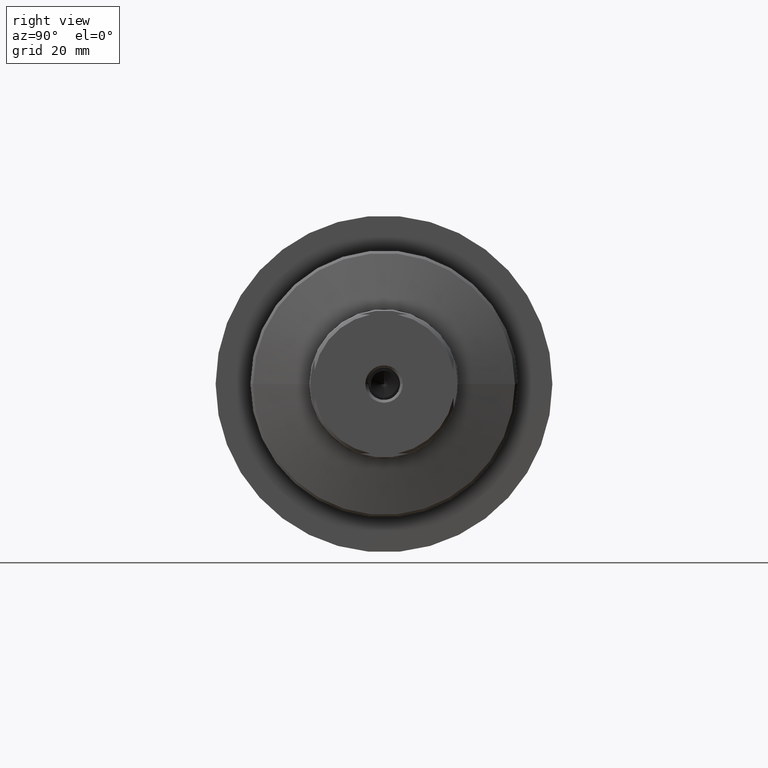
[diagram: clean part render]
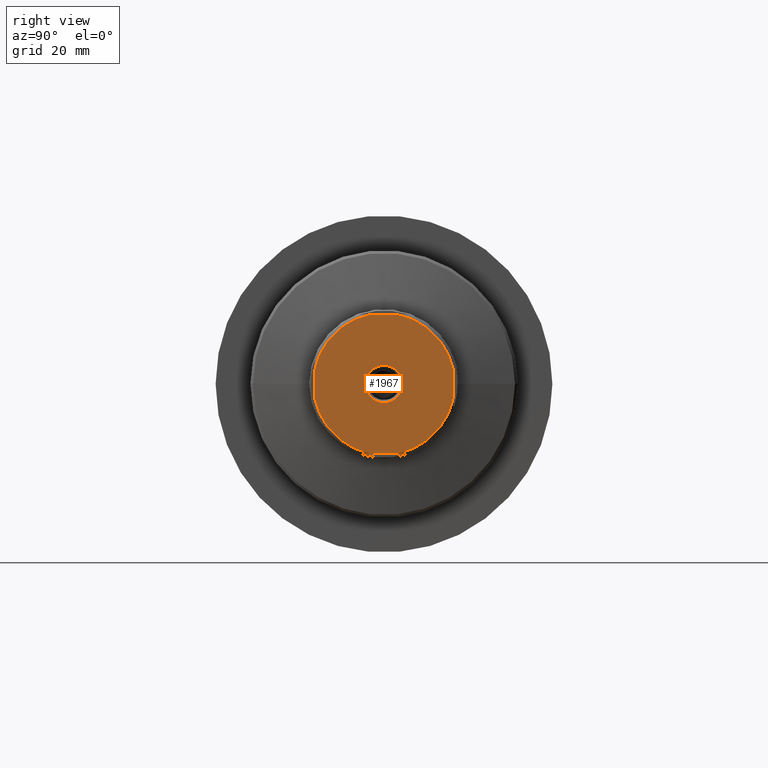
[diagram: same view with one face highlighted and labeled with its STEP entity id]
A machine part, right view. The second image highlights one B-rep face of the part: STEP entity #1967.
In plain terms, the highlighted planar face has unit normal (-1, -0, 0).
Its self-contained STEP definition (entity closure, byte-faithful):
#20 = VERTEX_POINT ( 'NONE', #460 ) ;
#70 = ORIENTED_EDGE ( 'NONE', *, *, #595, .T. ) ;
#74 = VECTOR ( 'NONE', #1925, 1000.000000000000000 ) ;
#75 = EDGE_CURVE ( 'NONE', #1160, #2187, #344, .T. ) ;
#87 = EDGE_CURVE ( 'NONE', #1160, #2223, #1934, .T. ) ;
#90 = DIRECTION ( 'NONE',  ( -1.000000000000000000, -1.069542322069065801E-17, -0.000000000000000000 ) ) ;
#146 = DIRECTION ( 'NONE',  ( 0.000000000000000000, -3.872912908332386132E-16, 1.000000000000000000 ) ) ;
#175 = AXIS2_PLACEMENT_3D ( 'NONE', #798, #1097, #1807 ) ;
#187 = ORIENTED_EDGE ( 'NONE', *, *, #1604, .T. ) ;
#235 = VERTEX_POINT ( 'NONE', #385 ) ;
#261 = CARTESIAN_POINT ( 'NONE',  ( 104.0000000000000568, 2.561737691490083790, -12.99999999999999822 ) ) ;
#283 = EDGE_LOOP ( 'NONE', ( #2046, #919, #1346, #1383, #682, #873, #905, #70 ) ) ;
#322 = CIRCLE ( 'NONE', #1919, 3.500000000000374811 ) ;
#325 = CARTESIAN_POINT ( 'NONE',  ( 104.0000000000000142, 1.112324014951828568E-15, 0.000000000000000000 ) ) ;
#343 = LINE ( 'NONE', #1391, #1251 ) ;
#344 = LINE ( 'NONE', #2285, #756 ) ;
#347 = CARTESIAN_POINT ( 'NONE',  ( 104.0000000000000142, 8.673617379884035472E-16, 0.000000000000000000 ) ) ;
#355 = CARTESIAN_POINT ( 'NONE',  ( 104.0000000000000142, 1.112324014951828568E-15, 0.000000000000000000 ) ) ;
#383 = VERTEX_POINT ( 'NONE', #2056 ) ;
#385 = CARTESIAN_POINT ( 'NONE',  ( 104.0000000000000568, 2.561737691489861746, 13.00000000000000000 ) ) ;
#418 = EDGE_CURVE ( 'NONE', #1678, #235, #487, .T. ) ;
#460 = CARTESIAN_POINT ( 'NONE',  ( 103.9999999999997868, -13.00000000000172307, 2.561737691481097645 ) ) ;
#487 = LINE ( 'NONE', #1499, #1411 ) ;
#546 = CIRCLE ( 'NONE', #1986, 13.24999999999999112 ) ;
#562 = AXIS2_PLACEMENT_3D ( 'NONE', #347, #884, #874 ) ;
#586 = AXIS2_PLACEMENT_3D ( 'NONE', #666, #90, #1899 ) ;
#595 = EDGE_CURVE ( 'NONE', #383, #2187, #1632, .T. ) ;
#596 = EDGE_LOOP ( 'NONE', ( #187, #652 ) ) ;
#624 = DIRECTION ( 'NONE',  ( 1.549165163332954492E-14, 1.000000000000000000, 1.936456454166193066E-16 ) ) ;
#652 = ORIENTED_EDGE ( 'NONE', *, *, #1363, .T. ) ;
#666 = CARTESIAN_POINT ( 'NONE',  ( 104.0000000000000142, -1.723555391471920102E-12, 0.000000000000000000 ) ) ;
#682 = ORIENTED_EDGE ( 'NONE', *, *, #418, .F. ) ;
#756 = VECTOR ( 'NONE', #1433, 1000.000000000000000 ) ;
#798 = CARTESIAN_POINT ( 'NONE',  ( 104.0000000000000142, 1.112324014951828568E-15, 0.000000000000000000 ) ) ;
#867 = CARTESIAN_POINT ( 'NONE',  ( 103.9999999999999716, -2.561737691489853752, 13.00000000000000000 ) ) ;
#873 = ORIENTED_EDGE ( 'NONE', *, *, #936, .T. ) ;
#874 = DIRECTION ( 'NONE',  ( 1.069542322069065801E-17, -1.000000000000000000, 0.000000000000000000 ) ) ;
#884 = DIRECTION ( 'NONE',  ( -1.000000000000000000, -1.069542322069065801E-17, 0.000000000000000000 ) ) ;
#887 = DIRECTION ( 'NONE',  ( -1.000000000000000000, -1.069542322069065801E-17, -0.000000000000000000 ) ) ;
#905 = ORIENTED_EDGE ( 'NONE', *, *, #1553, .F. ) ;
#919 = ORIENTED_EDGE ( 'NONE', *, *, #87, .T. ) ;
#936 = EDGE_CURVE ( 'NONE', #1678, #20, #1136, .T. ) ;
#990 = CARTESIAN_POINT ( 'NONE',  ( 104.0000000000000142, 1.112324014951828568E-15, 0.000000000000000000 ) ) ;
#1027 = DIRECTION ( 'NONE',  ( 0.000000000000000000, -1.000000000000000000, 0.000000000000000000 ) ) ;
#1031 = FACE_BOUND ( 'NONE', #596, .T. ) ;
#1097 = DIRECTION ( 'NONE',  ( 1.000000000000000000, 1.069542322069065801E-17, 0.000000000000000000 ) ) ;
#1136 = CIRCLE ( 'NONE', #1550, 13.24999999999999112 ) ;
#1160 = VERTEX_POINT ( 'NONE', #261 ) ;
#1161 = DIRECTION ( 'NONE',  ( 1.000000000000000000, 1.069542322069065801E-17, 0.000000000000000000 ) ) ;
#1212 = CARTESIAN_POINT ( 'NONE',  ( 104.0000000000002274, 12.99999999999827516, 4.479118216792238982 ) ) ;
#1215 = DIRECTION ( 'NONE',  ( 0.000000000000000000, -1.000000000000000000, 0.000000000000000000 ) ) ;
#1229 = DIRECTION ( 'NONE',  ( 0.000000000000000000, -1.000000000000000000, 0.000000000000000000 ) ) ;
#1230 = FACE_OUTER_BOUND ( 'NONE', #283, .T. ) ;
#1251 = VECTOR ( 'NONE', #146, 1000.000000000000000 ) ;
#1284 = VERTEX_POINT ( 'NONE', #1984 ) ;
#1333 = EDGE_CURVE ( 'NONE', #1700, #235, #546, .T. ) ;
#1346 = ORIENTED_EDGE ( 'NONE', *, *, #1679, .F. ) ;
#1363 = EDGE_CURVE ( 'NONE', #1284, #1755, #1651, .T. ) ;
#1383 = ORIENTED_EDGE ( 'NONE', *, *, #1333, .T. ) ;
#1391 = CARTESIAN_POINT ( 'NONE',  ( 103.9999999999997868, -13.00000000000171951, -4.479118216792240759 ) ) ;
#1411 = VECTOR ( 'NONE', #624, 1000.000000000000000 ) ;
#1433 = DIRECTION ( 'NONE',  ( -1.549165163332954492E-14, -1.000000000000000000, -1.936456454166193066E-16 ) ) ;
#1499 = CARTESIAN_POINT ( 'NONE',  ( 103.9999999999999432, -4.479118216793962048, 12.99999999999999822 ) ) ;
#1527 = CARTESIAN_POINT ( 'NONE',  ( 104.0000000000000142, 3.499999999998645528, 0.000000000000000000 ) ) ;
#1537 = CARTESIAN_POINT ( 'NONE',  ( 103.9999999999999716, -2.561737691490076685, -13.00000000000000000 ) ) ;
#1550 = AXIS2_PLACEMENT_3D ( 'NONE', #325, #1738, #1229 ) ;
#1553 = EDGE_CURVE ( 'NONE', #383, #20, #343, .T. ) ;
#1555 = LINE ( 'NONE', #1212, #74 ) ;
#1604 = EDGE_CURVE ( 'NONE', #1755, #1284, #322, .T. ) ;
#1632 = CIRCLE ( 'NONE', #175, 13.25000000000003197 ) ;
#1651 = CIRCLE ( 'NONE', #586, 3.500000000000374811 ) ;
#1678 = VERTEX_POINT ( 'NONE', #867 ) ;
#1679 = EDGE_CURVE ( 'NONE', #1700, #2223, #1555, .T. ) ;
#1700 = VERTEX_POINT ( 'NONE', #1923 ) ;
#1738 = DIRECTION ( 'NONE',  ( 1.000000000000000000, 1.069542322069065801E-17, 0.000000000000000000 ) ) ;
#1739 = PLANE ( 'NONE',  #562 ) ;
#1750 = CARTESIAN_POINT ( 'NONE',  ( 104.0000000000000142, -1.723555391471920102E-12, 0.000000000000000000 ) ) ;
#1755 = VERTEX_POINT ( 'NONE', #1527 ) ;
#1807 = DIRECTION ( 'NONE',  ( 0.000000000000000000, -1.000000000000000000, 0.000000000000000000 ) ) ;
#1899 = DIRECTION ( 'NONE',  ( 0.000000000000000000, -1.000000000000000000, 0.000000000000000000 ) ) ;
#1919 = AXIS2_PLACEMENT_3D ( 'NONE', #1750, #887, #1947 ) ;
#1923 = CARTESIAN_POINT ( 'NONE',  ( 104.0000000000000142, 12.99999999999827516, 2.561737691498608083 ) ) ;
#1925 = DIRECTION ( 'NONE',  ( 0.000000000000000000, 3.872912908332386132E-16, -1.000000000000000000 ) ) ;
#1934 = CIRCLE ( 'NONE', #2228, 13.25000000000003197 ) ;
#1947 = DIRECTION ( 'NONE',  ( 0.000000000000000000, -1.000000000000000000, 0.000000000000000000 ) ) ;
#1967 = ADVANCED_FACE ( 'NONE', ( #1031, #1230 ), #1739, .F. ) ;
#1984 = CARTESIAN_POINT ( 'NONE',  ( 104.0000000000000142, -3.500000000002220002, 4.286263797016344511E-16 ) ) ;
#1986 = AXIS2_PLACEMENT_3D ( 'NONE', #990, #1161, #1027 ) ;
#2046 = ORIENTED_EDGE ( 'NONE', *, *, #75, .F. ) ;
#2056 = CARTESIAN_POINT ( 'NONE',  ( 104.0000000000000142, -13.00000000000171951, -2.561737691481324575 ) ) ;
#2135 = DIRECTION ( 'NONE',  ( 1.000000000000000000, 1.069542322069065801E-17, 0.000000000000000000 ) ) ;
#2142 = CARTESIAN_POINT ( 'NONE',  ( 104.0000000000002274, 12.99999999999827871, -2.561737691498814584 ) ) ;
#2187 = VERTEX_POINT ( 'NONE', #1537 ) ;
#2223 = VERTEX_POINT ( 'NONE', #2142 ) ;
#2228 = AXIS2_PLACEMENT_3D ( 'NONE', #355, #2135, #1215 ) ;
#2285 = CARTESIAN_POINT ( 'NONE',  ( 104.0000000000000853, 4.479118216790515916, -12.99999999999999822 ) ) ;